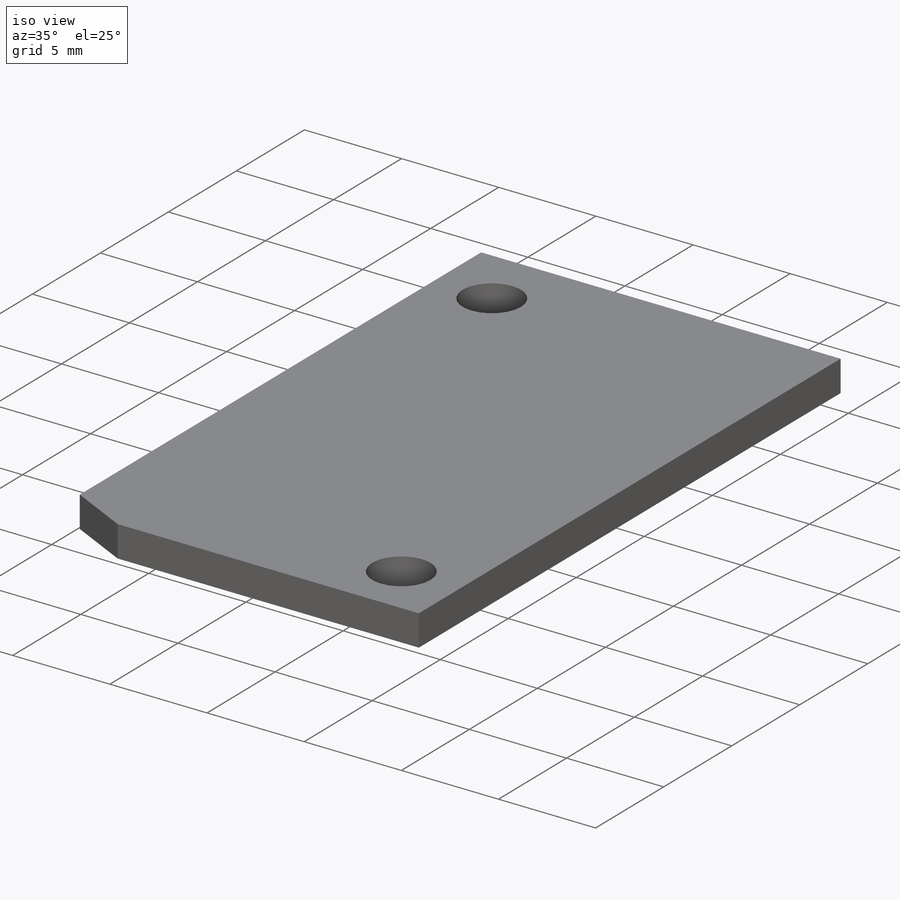
[diagram: iso view]
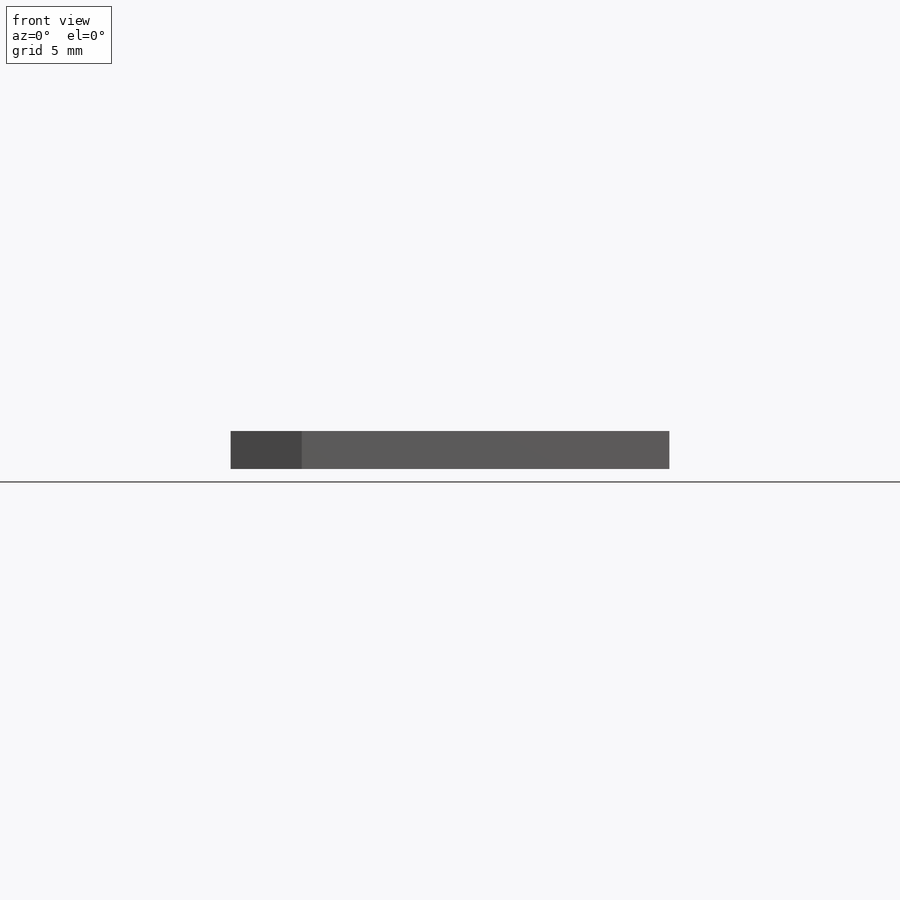
[diagram: front view]
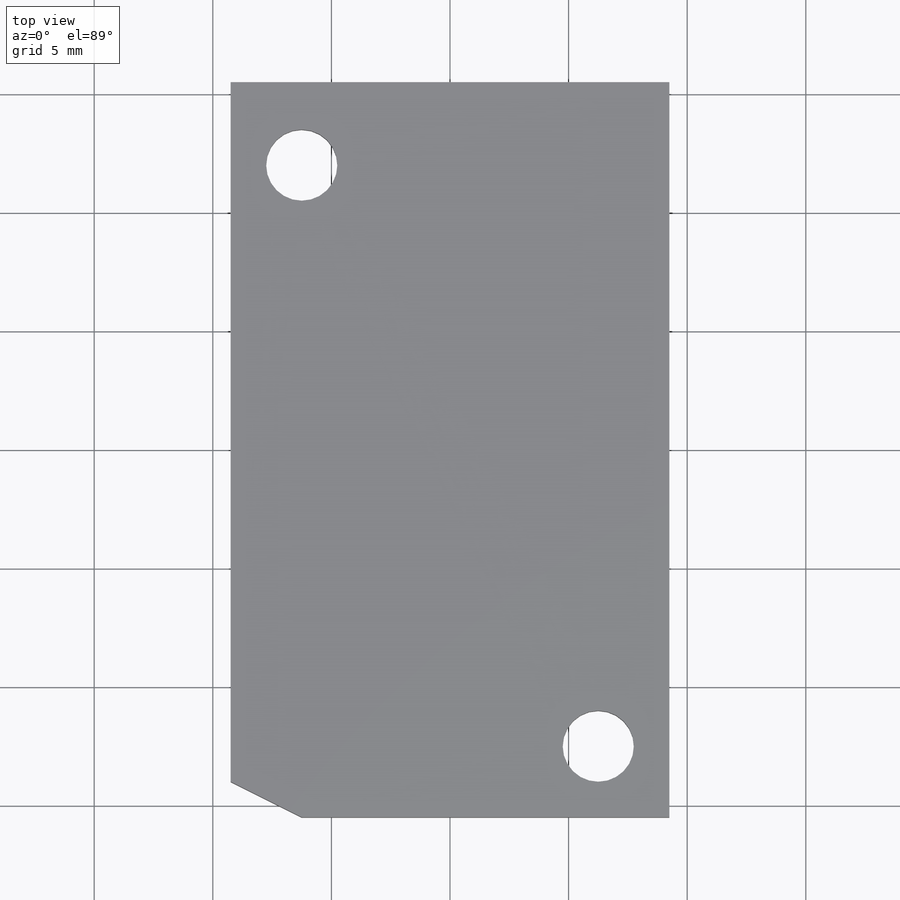
[diagram: top view]
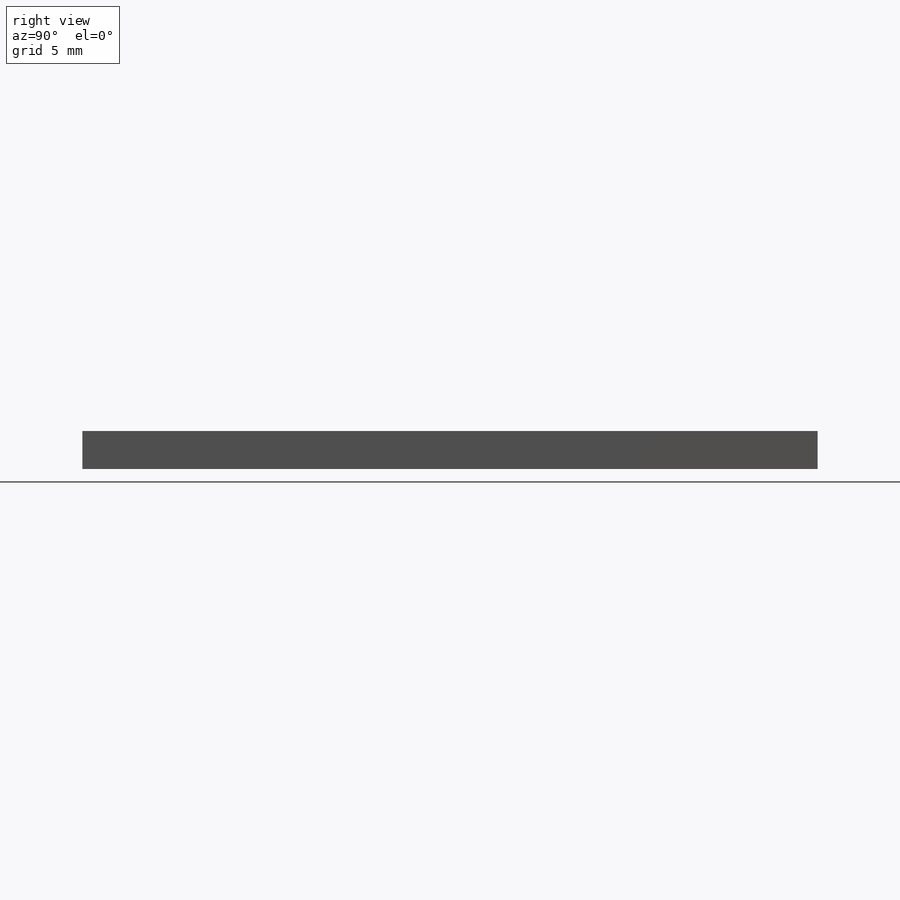
[diagram: right view]
SOLIDWORKS PART (.sldprt)
format: sldprt  version: not decoded by parser v0  size: 214,528 bytes
history: native  units: mm
features: sketch x3, material x1, extrude x1, hole x1 (+15 scaffold rows collapsed)
feature tree (21):
  scaffold x15  (default folders/planes/origin — collapsed)
  material  "Material <not specified>"
  sketch  "Sketch1"  dims[c1.D1=18.5mm c1.D2=31.0mm c1.D3=1.5mm c1.D4=3.0mm c2.D1=18.5mm c2.D2=31.0mm]
  extrude  "Extrude1"  Depth=1.6mm
  hole  "Ø3.0 (3) Diameter Hole1"  Diameter=3mm Depth=10mm
  sketch  "3DSketch1"  dims[D1=3.0mm D2=3.0mm D3=3.0mm D4=3.5mm]
  sketch  "Sketch2"  dims[hole-wizard template sketch: 50 standard entries collapsed; hole parameters above]
decode coverage: 5 of 5 modeling features carry decoded parameters
note: ~ marks probable driven/reference dimensions
note: suppression state not decoded; provenance and decode notes live in map.json
